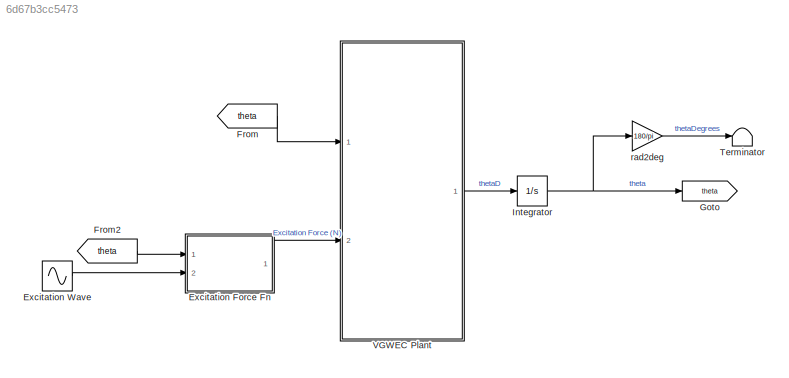
MODEL slx_6d67b3cc5473
KIND model
CONFIG AbsTol = auto
CONFIG EnableMultiTasking = off
CONFIG FixedStep = dt
CONFIG MaxStep = auto
CONFIG MinStep = auto
CONFIG RelTol = 1e-3
CONFIG SampleTimeConstraint = Unconstrained
CONFIG SolverName = ode3
CONFIG StartTime = 0.0
CONFIG StopTime = tSim
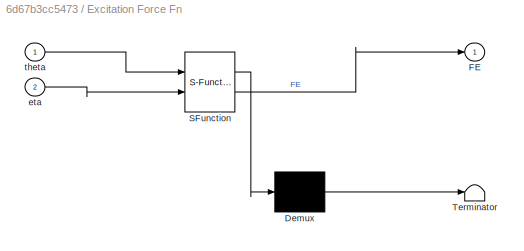
BLOCK [SubSystem] Excitation Force Fn
  ErrorFcn = Stateflow.Translate.translate
  PermitHierarchicalResolution = ExplicitOnly
  Ports = [2, 1]
  RequestExecContextInheritance = off
  SFBlockType = MATLAB Function
  TreatAsAtomicUnit = on
BLOCK [Demux] Excitation Force Fn/ Demux 
  Outputs = 1
  Ports = [1, 1]
BLOCK [S-Function] Excitation Force Fn/ SFunction 
  EnableBusSupport = on
  FunctionName = sf_sfun
  Parameters = hydroCoeff,hydroVCoeff,w_Wave
  PortCounts = [2 2]
  Ports = [2, 2]
  SFcnIsStateOwnerBlock = off
  SFunctionDeploymentMode = off
  Tag = Stateflow S-Function 3
BLOCK [Terminator] Excitation Force Fn/ Terminator 
BLOCK [Outport] Excitation Force Fn/FE
BLOCK [Inport] Excitation Force Fn/eta
  Port = 2
BLOCK [Inport] Excitation Force Fn/theta
BLOCK [Sin] Excitation Wave
  Amplitude = amp_Wave
  Frequency = w_Wave
  Ports = [0, 1]
  SampleTime = 0
BLOCK [From] From
  GotoTag = theta
BLOCK [From] From2
  GotoTag = theta
BLOCK [Goto] Goto
  GotoTag = theta
BLOCK [Integrator] Integrator
  InitialCondition = theta0
  Ports = [1, 1]
BLOCK [Terminator] Terminator
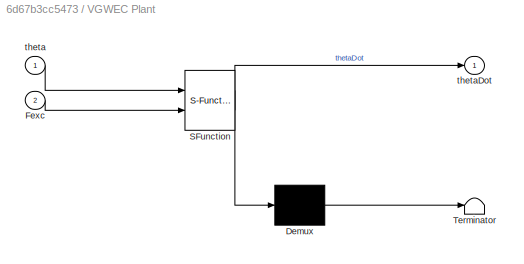
BLOCK [SubSystem] VGWEC Plant
  ErrorFcn = Stateflow.Translate.translate
  PermitHierarchicalResolution = ExplicitOnly
  Ports = [2, 1]
  RequestExecContextInheritance = off
  SFBlockType = MATLAB Function
  TreatAsAtomicUnit = on
BLOCK [Demux] VGWEC Plant/ Demux 
  Outputs = 1
  Ports = [1, 1]
BLOCK [S-Function] VGWEC Plant/ SFunction 
  EnableBusSupport = on
  FunctionName = sf_sfun
  Parameters = hydroCoeff,hydroVCoeff,w_Wave
  PortCounts = [2 2]
  Ports = [2, 2]
  SFcnIsStateOwnerBlock = off
  SFunctionDeploymentMode = off
  Tag = Stateflow S-Function 2
BLOCK [Terminator] VGWEC Plant/ Terminator 
BLOCK [Inport] VGWEC Plant/Fexc
  Port = 2
BLOCK [Inport] VGWEC Plant/theta
BLOCK [Outport] VGWEC Plant/thetaDot
BLOCK [Gain] rad2deg
  Gain = 180/pi
LINE Excitation Force Fn:1 -> VGWEC Plant:2
LINE Excitation Wave:1 -> Excitation Force Fn:2
LINE From2:1 -> Excitation Force Fn:1
LINE From:1 -> VGWEC Plant:1
NET Integrator:1 -> Goto:1, rad2deg:1
LINE VGWEC Plant:1 -> Integrator:1
LINE rad2deg:1 -> Terminator:1
note: NET lines group one-source signal fan-out (src -> all destinations, sorted); 1:1 wires keep LINE
CHART VGWEC Plant states=1 transitions=1
  STATE_LABEL 'eML_blk_kernel()'
  STATE_LABEL "SCRIPT:\nfunction thetaDot = vgWEC(theta, Fexc, hydroVCoeff, hydroCoeff, w_Wave)\n\n% Declare the plant as an extrinsic function\n%coder.extrinsic('vgWecPlant');\n\nthetaDot = vgWecPlant(theta,w_Wave,hydroCoeff,hydroVCoeff, Fexc);\n"
CHART Excitation Force Fn states=1 transitions=1
  STATE_LABEL 'eML_blk_kernel()'
  STATE_LABEL "SCRIPT:\nfunction FE = fE(theta,eta,hydroCoeff, hydroVCoeff, w_Wave)\n\n% Declare the excitation force function as an extrinsic function\n%coder.extrinsic('fExc');\n\nFE = fExc(theta, eta, w_Wave,hydroVCoeff,hydroCoeff);\n"
CHART  states=0 transitions=0
CHART  states=0 transitions=0
